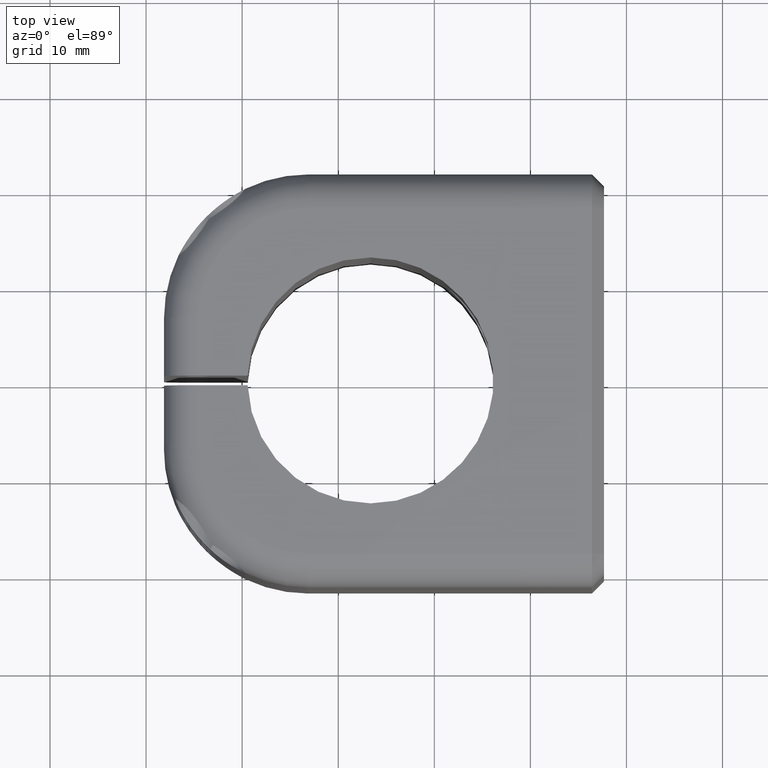
[diagram: clean part render]
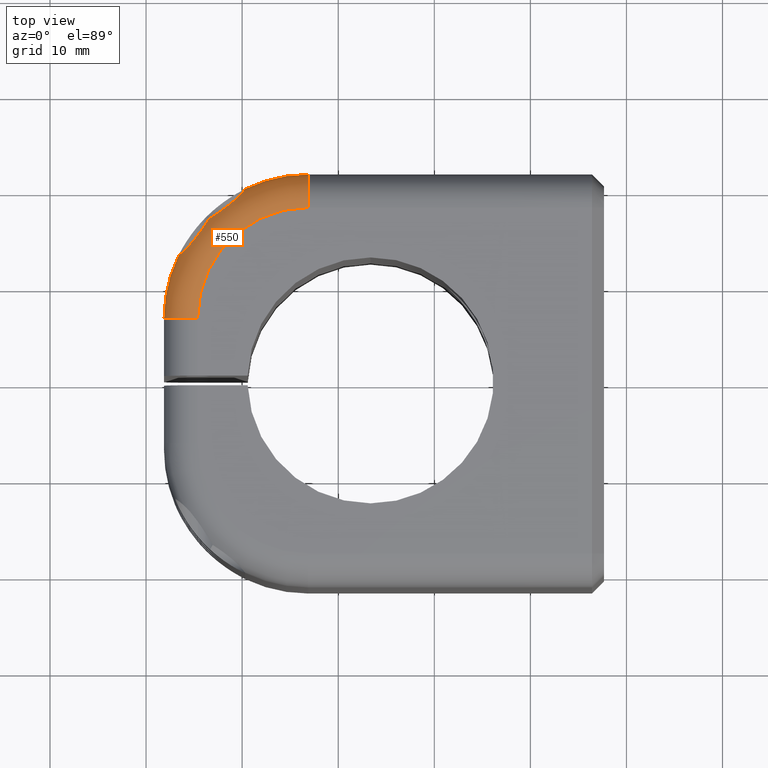
[diagram: same view with one face highlighted and labeled with its STEP entity id]
A machine part, top view. The second image highlights one B-rep face of the part: STEP entity #550.
In plain terms, the highlighted toroidal blend (fillet) surface has major radius 11.5 mm and minor (blend) radius 3.5 mm.
Its self-contained STEP definition (entity closure, byte-faithful):
#306=TOROIDAL_SURFACE('',#10268,11.5,3.5);
#550=ADVANCED_FACE('',(#979),#306,.T.);
#979=FACE_OUTER_BOUND('',#1457,.F.);
#1457=EDGE_LOOP('',(#2498,#2499,#2500,#2501,#2502,#2503,#2504));
#2498=ORIENTED_EDGE('',*,*,#6896,.F.);
#2499=ORIENTED_EDGE('',*,*,#6836,.F.);
#2500=ORIENTED_EDGE('',*,*,#6458,.F.);
#2501=ORIENTED_EDGE('',*,*,#6488,.F.);
#2502=ORIENTED_EDGE('',*,*,#6838,.F.);
#2503=ORIENTED_EDGE('',*,*,#6895,.F.);
#2504=ORIENTED_EDGE('',*,*,#6851,.T.);
#6028=CIRCLE('',#10001,15.);
#6030=CIRCLE('',#10003,15.);
#6037=CIRCLE('',#10010,11.5);
#6059=CIRCLE('',#10032,3.5);
#6060=CIRCLE('',#10033,3.5);
#6240=B_SPLINE_CURVE_WITH_KNOTS('',3,(#15025,#15026,#15027,#15028,#15029,
#15030,#15031,#15032,#15033,#15034,#15035,#15036,#15037,#15038,#15039,#15040,
#15041,#15042,#15043),.UNSPECIFIED.,.F.,.F.,(4,1,1,1,1,1,1,1,1,1,1,1,1,1,
1,1,4),(0.,0.0897288120527977,0.159583281731348,0.247174931899613,0.337104949846046,
0.424801030578324,0.506116010119982,0.578849156264822,0.643057791487145,
0.700024787040736,0.751267740240988,0.798153738304269,0.841815593027648,
0.883173960586271,0.922948986965639,0.955374548696798,1.),.UNSPECIFIED.);
#6254=B_SPLINE_CURVE_WITH_KNOTS('',3,(#15258,#15259,#15260,#15261,#15262,
#15263,#15264,#15265,#15266,#15267,#15268,#15269,#15270,#15271,#15272,#15273,
#15274,#15275,#15276),.UNSPECIFIED.,.F.,.F.,(4,1,1,1,1,1,1,1,1,1,1,1,1,1,
1,1,4),(0.,0.0446289125049411,0.0770439812666183,0.116802791524582,0.158165568700159,
0.201863243850754,0.248789257795233,0.300030961637981,0.356968785221058,
0.421149138860743,0.493874258385403,0.575190147796256,0.662887410711259,
0.752819174599668,0.840412731240166,0.910268714448851,1.),.UNSPECIFIED.);
#6458=EDGE_CURVE('',#9537,#9532,#6240,.T.);
#6488=EDGE_CURVE('',#9503,#9537,#6254,.T.);
#6836=EDGE_CURVE('',#9532,#9205,#6028,.T.);
#6838=EDGE_CURVE('',#9203,#9503,#6030,.T.);
#6851=EDGE_CURVE('',#9194,#9195,#6037,.T.);
#6895=EDGE_CURVE('',#9194,#9203,#6059,.T.);
#6896=EDGE_CURVE('',#9205,#9195,#6060,.T.);
#9194=VERTEX_POINT('',#13334);
#9195=VERTEX_POINT('',#13335);
#9203=VERTEX_POINT('',#13343);
#9205=VERTEX_POINT('',#13345);
#9503=VERTEX_POINT('',#13643);
#9532=VERTEX_POINT('',#13672);
#9537=VERTEX_POINT('',#13677);
#10001=AXIS2_PLACEMENT_3D('',#15926,#11374,#11375);
#10003=AXIS2_PLACEMENT_3D('',#15928,#11378,#11379);
#10010=AXIS2_PLACEMENT_3D('',#15941,#11398,#11399);
#10032=AXIS2_PLACEMENT_3D('',#15985,#11464,#11465);
#10033=AXIS2_PLACEMENT_3D('',#15986,#11466,#11467);
#10268=AXIS2_PLACEMENT_3D('',#16657,#12372,#12373);
#11374=DIRECTION('',(0.,0.,1.));
#11375=DIRECTION('',(-0.89999975203483,0.435890406337698,0.));
#11378=DIRECTION('',(0.,0.,1.));
#11379=DIRECTION('',(0.,1.,0.));
#11398=DIRECTION('',(0.,0.,1.));
#11399=DIRECTION('',(0.,1.,0.));
#11464=DIRECTION('',(-1.,0.,0.));
#11465=DIRECTION('',(0.,0.,1.));
#11466=DIRECTION('',(0.,1.,0.));
#11467=DIRECTION('',(-1.,0.,0.));
#12372=DIRECTION('',(0.,0.,1.));
#12373=DIRECTION('',(0.623489801858737,0.781831482468027,0.));
#13334=CARTESIAN_POINT('',(166.864999714696,18.0000037170447,-107.00000019205));
#13335=CARTESIAN_POINT('',(155.364999714696,6.5000037170432,-107.00000019205));
#13343=CARTESIAN_POINT('',(166.864999714696,21.5000037170447,-110.50000019205));
#13345=CARTESIAN_POINT('',(151.864999714696,6.50000371704307,-110.50000019205));
#13643=CARTESIAN_POINT('',(160.32665416634,20.0000004831467,-110.500015624295));
#13672=CARTESIAN_POINT('',(153.364999606525,13.038344005666,-110.50000032074));
#13677=CARTESIAN_POINT('',(156.53912284382,16.8258821261412,-108.880951492791));
#15025=CARTESIAN_POINT('',(156.539192724307,16.8259825947099,-108.880963377243));
#15026=CARTESIAN_POINT('',(156.4475754637,16.6853768702359,-108.814571395032));
#15027=CARTESIAN_POINT('',(156.280068205058,16.4303011753282,-108.713956938347));
#15028=CARTESIAN_POINT('',(156.010562188049,16.027739253797,-108.600322822061));
#15029=CARTESIAN_POINT('',(155.731385406662,15.6220754754068,-108.52561815319));
#15030=CARTESIAN_POINT('',(155.419560605997,15.1897114378593,-108.492361041786));
#15031=CARTESIAN_POINT('',(155.103101870486,14.7753510366914,-108.50868854382));
#15032=CARTESIAN_POINT('',(154.796443414404,14.402465397365,-108.57420969317));
#15033=CARTESIAN_POINT('',(154.513198255401,14.0836476145741,-108.682472623185));
#15034=CARTESIAN_POINT('',(154.261111730677,13.820398621478,-108.824233533516));
#15035=CARTESIAN_POINT('',(154.042212699101,13.6085493120822,-108.992035295633));
#15036=CARTESIAN_POINT('',(153.856527484578,13.4391395752051,-109.178336833291));
#15037=CARTESIAN_POINT('',(153.702209560045,13.3061790617781,-109.379278991335));
#15038=CARTESIAN_POINT('',(153.577914361012,13.2047867918113,-109.591662187699));
#15039=CARTESIAN_POINT('',(153.482319292125,13.1287465508257,-109.811798157989));
#15040=CARTESIAN_POINT('',(153.417929001314,13.0780786104556,-110.025775561046));
#15041=CARTESIAN_POINT('',(153.375359683216,13.0457228333109,-110.255307920575));
#15042=CARTESIAN_POINT('',(153.364977069189,13.0382878639342,-110.410232866115));
#15043=CARTESIAN_POINT('',(153.364995778877,13.0383281992061,-110.500000168742));
#15258=CARTESIAN_POINT('',(160.326671433089,20.0000042252943,-110.50006138304));
#15259=CARTESIAN_POINT('',(160.3266966986,20.0000216916881,-110.410284245323));
#15260=CARTESIAN_POINT('',(160.318903753323,19.989554111333,-110.255395208254));
#15261=CARTESIAN_POINT('',(160.286481717168,19.9469978902047,-110.0259607499));
#15262=CARTESIAN_POINT('',(160.236856764377,19.8828268507585,-109.811736837401));
#15263=CARTESIAN_POINT('',(160.160988808479,19.78719524964,-109.591434804443));
#15264=CARTESIAN_POINT('',(160.058616091675,19.6627783373709,-109.379380999177));
#15265=CARTESIAN_POINT('',(159.925180695968,19.5084605779831,-109.178593460983));
#15266=CARTESIAN_POINT('',(159.755843360975,19.3227841761894,-108.99222019097));
#15267=CARTESIAN_POINT('',(159.544480270949,19.1037938414009,-108.82417057389));
#15268=CARTESIAN_POINT('',(159.28132163655,18.8517652878336,-108.682460391993));
#15269=CARTESIAN_POINT('',(158.962556045597,18.5685821266571,-108.57421860643));
#15270=CARTESIAN_POINT('',(158.589687309915,18.2619278094549,-108.508691853294));
#15271=CARTESIAN_POINT('',(158.175325545514,17.9454678902731,-108.492360211833));
#15272=CARTESIAN_POINT('',(157.742958523971,17.6336391784651,-108.525613636347));
#15273=CARTESIAN_POINT('',(157.33729085066,17.3544580480854,-108.600315352581));
#15274=CARTESIAN_POINT('',(156.934722652912,17.0849473860911,-108.713948096231));
#15275=CARTESIAN_POINT('',(156.679641501991,16.9174443725024,-108.814570492898));
#15276=CARTESIAN_POINT('',(156.539034402343,16.8258184075128,-108.880955425604));
#15926=CARTESIAN_POINT('',(166.864999714696,6.50000371704468,-110.50000019205));
#15928=CARTESIAN_POINT('',(166.864999714696,6.50000371704468,-110.50000019205));
#15941=CARTESIAN_POINT('',(166.864999714696,6.50000371704465,-107.00000019205));
#15985=CARTESIAN_POINT('',(166.864999714696,18.0000037170447,-110.50000019205));
#15986=CARTESIAN_POINT('',(155.364999714696,6.50000371704477,-110.50000019205));
#16657=CARTESIAN_POINT('',(166.864999714696,6.50000371704465,-110.50000019205));